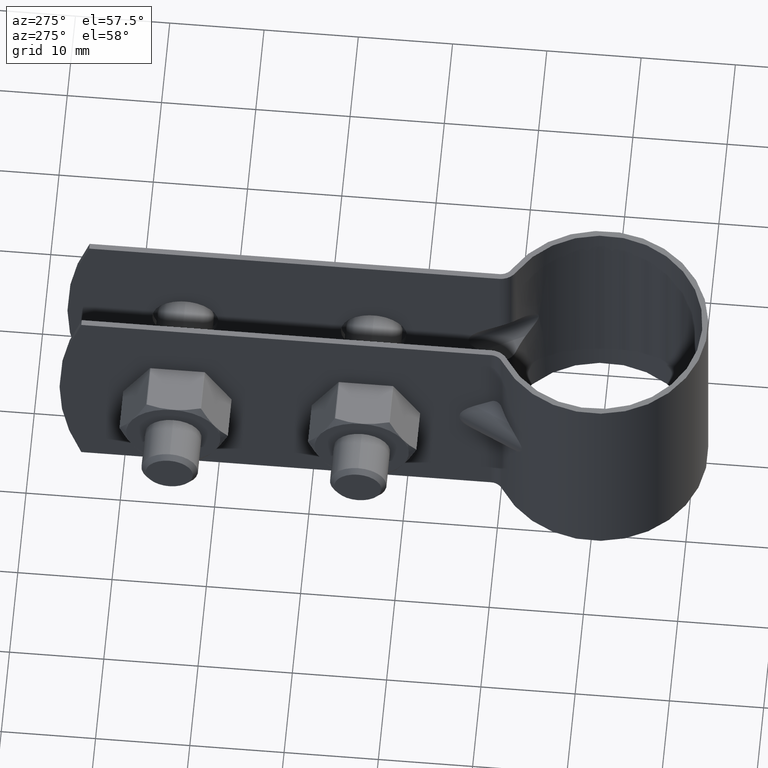
[diagram: clean part render]
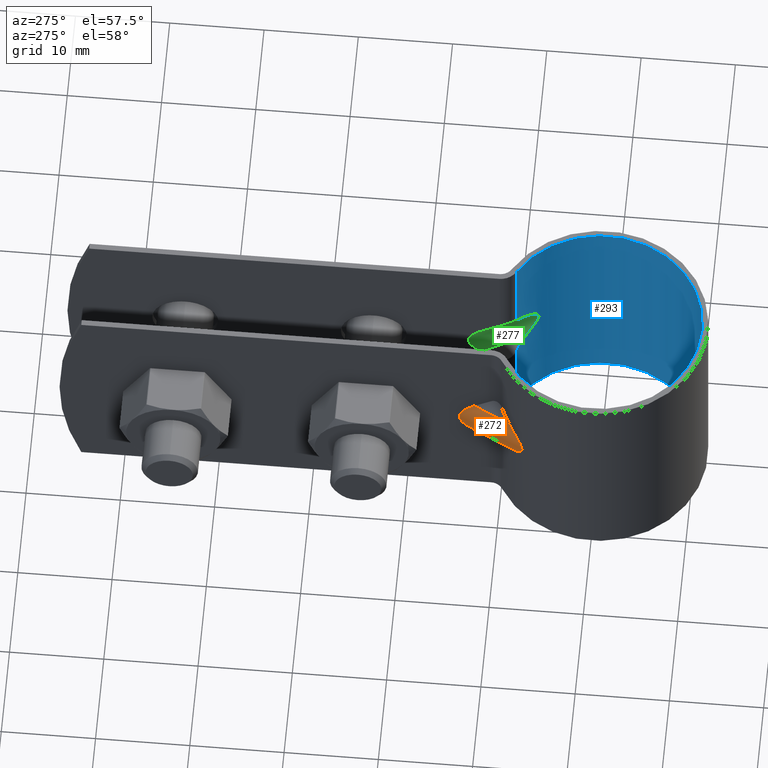
[diagram: same view with three faces highlighted in distinct colors, each labeled with its STEP entity id]
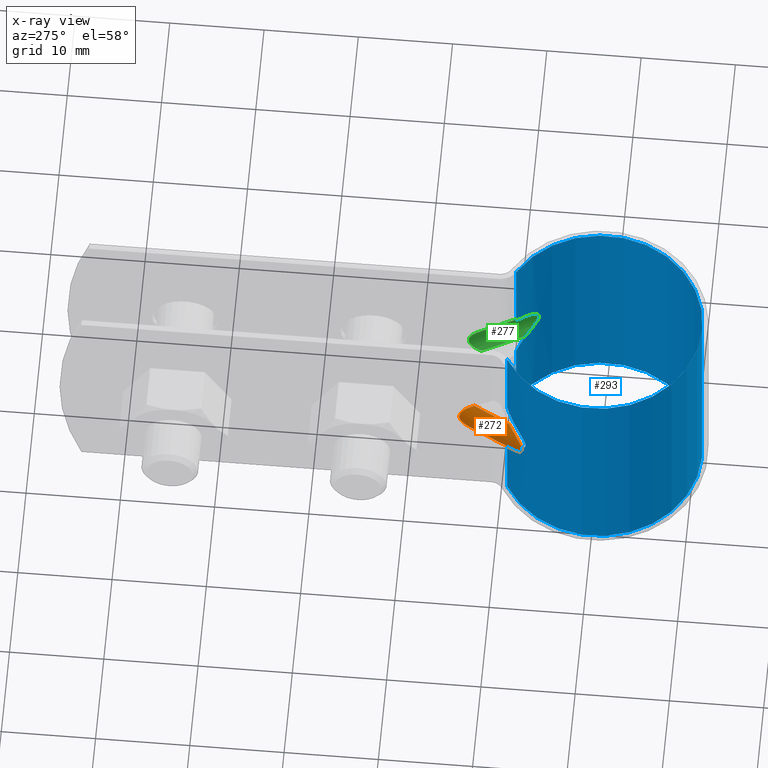
[diagram: x-ray of the same camera — body ghosted, the three highlighted faces saturated]
A machine part, auxiliary view with three faces highlighted in distinct colors.
The next image is the same camera in x-ray (body ghosted, the three faces saturated) — at least one of them is partly hidden behind the body in this view.
Their STEP definitions:

[orange] entity #272 — the highlighted cylindrical surface (partial cylindrical patch) has radius 4 mm, axis along (-0.454, -0.891, -0).
#272 = ADVANCED_FACE( '', ( #380 ), #381, .T. );
#380 = FACE_OUTER_BOUND( '', #612, .T. );
#381 = CYLINDRICAL_SURFACE( '', #613, 4.00000000000000 );
#612 = EDGE_LOOP( '', ( #885, #886, #887, #888 ) );
#613 = AXIS2_PLACEMENT_3D( '', #889, #890, #891 );
#885 = ORIENTED_EDGE( '', *, *, #1647, .T. );
#886 = ORIENTED_EDGE( '', *, *, #1648, .T. );
#887 = ORIENTED_EDGE( '', *, *, #1649, .F. );
#888 = ORIENTED_EDGE( '', *, *, #1639, .T. );
#889 = CARTESIAN_POINT( '', ( -6.67257909010660, 2.56235376942294, -5.98479599211998E-014 ) );
#890 = DIRECTION( '', ( -0.453990499739548, -0.891006524188367, -8.60422844084494E-016 ) );
#891 = DIRECTION( '', ( -0.729869815763728, 0.371887245949431, -0.573576436351049 ) );
#1639 = EDGE_CURVE( '', #1899, #1897, #1900, .T. );
#1647 = EDGE_CURVE( '', #1897, #1912, #1913, .T. );
#1648 = EDGE_CURVE( '', #1912, #1914, #1915, .T. );
#1649 = EDGE_CURVE( '', #1899, #1914, #1916, .T. );
#1897 = VERTEX_POINT( '', #2308 );
#1899 = VERTEX_POINT( '', #2310 );
#1900 = B_SPLINE_CURVE_WITH_KNOTS( '', 3, ( #2311, #2312, #2313, #2314, #2315, #2316, #2317, #2318, #2319, #2320, #2321, #2322, #2323, #2324, #2325, #2326, #2327, #2328, #2329, #2330, #2331, #2332, #2333, #2334 ), .UNSPECIFIED., .F., .F., ( 4, 2, 2, 2, 2, 2, 2, 2, 2, 2, 2, 4 ), ( 9.01388759242296E-018, 0.000814319667050247, 0.00162863933410048, 0.00244295900115072, 0.00285011883467584, 0.00325727866820096, 0.00366443850172608, 0.00407159833525120, 0.00447875816877632, 0.00488591800230145, 0.00570023766935170, 0.00651455733640195 ), .UNSPECIFIED. );
#1912 = VERTEX_POINT( '', #2373 );
#1913 = LINE( '', #2374, #2375 );
#1914 = VERTEX_POINT( '', #2376 );
#1915 = ELLIPSE( '', #2377, 8.81075705834106, 4.00000000000000 );
#1916 = LINE( '', #2378, #2379 );
#2308 = CARTESIAN_POINT( '', ( -7.06421972431640, 9.01106540241381, 2.29430574540414 ) );
#2310 = CARTESIAN_POINT( '', ( -7.06421972431639, 9.01106540241381, -2.29430574540425 ) );
#2311 = CARTESIAN_POINT( '', ( -7.06421972431640, 9.01106540241381, -2.29430574540425 ) );
#2312 = CARTESIAN_POINT( '', ( -7.24857455182145, 8.86654053764197, -2.15342117460646 ) );
#2313 = CARTESIAN_POINT( '', ( -7.42422116055547, 8.71968238392546, -2.00602612896039 ) );
#2314 = CARTESIAN_POINT( '', ( -7.75709271824487, 8.42492927435785, -1.69398396535140 ) );
#2315 = CARTESIAN_POINT( '', ( -7.91447469068832, 8.27681513936333, -1.52968738492926 ) );
#2316 = CARTESIAN_POINT( '', ( -8.20586429096823, 7.98801412861499, -1.17140177940106 ) );
#2317 = CARTESIAN_POINT( '', ( -8.34177096305034, 7.84494315616777, -0.976839271782503 ) );
#2318 = CARTESIAN_POINT( '', ( -8.50427843618292, 7.66721541765637, -0.642951548960518 ) );
#2319 = CARTESIAN_POINT( '', ( -8.55134389353849, 7.61443345170520, -0.523924906721940 ) );
#2320 = CARTESIAN_POINT( '', ( -8.61855257077473, 7.53827770520545, -0.270226439868462 ) );
#2321 = CARTESIAN_POINT( '', ( -8.63829668241162, 7.51547275636857, -0.133195893972342 ) );
#2322 = CARTESIAN_POINT( '', ( -8.63754816475535, 7.51633301727733, 0.141252312308692 ) );
#2323 = CARTESIAN_POINT( '', ( -8.61733682019564, 7.53967775502428, 0.277333798240310 ) );
#2324 = CARTESIAN_POINT( '', ( -8.54811069658341, 7.61807311866089, 0.533442383951286 ) );
#2325 = CARTESIAN_POINT( '', ( -8.50111571649935, 7.67072321994332, 0.650320843498624 ) );
#2326 = CARTESIAN_POINT( '', ( -8.39256627439394, 7.78933851313419, 0.871549761359557 ) );
#2327 = CARTESIAN_POINT( '', ( -8.33069462358880, 7.85563170033272, 0.975773906045482 ) );
#2328 = CARTESIAN_POINT( '', ( -8.19995779842709, 7.99200315482785, 1.17163114108677 ) );
#2329 = CARTESIAN_POINT( '', ( -8.13056697056016, 8.06267872397660, 1.26412699786558 ) );
#2330 = CARTESIAN_POINT( '', ( -7.91313778836715, 8.27806621244543, 1.53104211893414 ) );
#2331 = CARTESIAN_POINT( '', ( -7.75597229987523, 8.42597110763756, 1.69513529121418 ) );
#2332 = CARTESIAN_POINT( '', ( -7.42246333653836, 8.72118876305969, 2.00757206401146 ) );
#2333 = CARTESIAN_POINT( '', ( -7.24645431192027, 8.86820269853652, 2.15504146897296 ) );
#2334 = CARTESIAN_POINT( '', ( -7.06421972431640, 9.01106540241381, 2.29430574540414 ) );
#2373 = CARTESIAN_POINT( '', ( -5.10000000000000, 12.8660636684776, 2.29430574540414 ) );
#2374 = CARTESIAN_POINT( '', ( -9.59205835316151, 4.04990275322066, 2.29430574540413 ) );
#2375 = VECTOR( '', #3039, 1000.00000000000 );
#2376 = CARTESIAN_POINT( '', ( -5.10000000000000, 12.8660636684776, -2.29430574540425 ) );
#2377 = AXIS2_PLACEMENT_3D( '', #3040, #3041, #3042 );
#2378 = CARTESIAN_POINT( '', ( -9.59205835316151, 4.04990275322065, -2.29430574540426 ) );
#2379 = VECTOR( '', #3043, 1000.00000000000 );
#3039 = DIRECTION( '', ( 0.453990499739548, 0.891006524188367, 8.60422844084496E-016 ) );
#3040 = CARTESIAN_POINT( '', ( -5.10000000000000, 5.64871401240387, -5.68675385819128E-014 ) );
#3041 = DIRECTION( '', ( -1.00000000000000, 6.06692130572647E-017, 0.000000000000000 ) );
#3042 = DIRECTION( '', ( 6.06692130572647E-017, 1.00000000000000, 9.65675133376009E-016 ) );
#3043 = DIRECTION( '', ( 0.453990499739548, 0.891006524188367, 8.60422844084496E-016 ) );

[blue] entity #293 — the highlighted cylindrical surface (partial cylindrical patch) has radius 10.85 mm, axis along (0, 0, -1).
#293 = ADVANCED_FACE( '', ( #432 ), #433, .F. );
#432 = FACE_OUTER_BOUND( '', #664, .T. );
#433 = CYLINDRICAL_SURFACE( '', #665, 10.8500000000000 );
#664 = EDGE_LOOP( '', ( #1042, #1043, #1044, #1045, #1046, #1047, #1048, #1049, #1050, #1051, #1052, #1053 ) );
#665 = AXIS2_PLACEMENT_3D( '', #1054, #1055, #1056 );
#1042 = ORIENTED_EDGE( '', *, *, #1658, .F. );
#1043 = ORIENTED_EDGE( '', *, *, #1619, .F. );
#1044 = ORIENTED_EDGE( '', *, *, #1629, .F. );
#1045 = ORIENTED_EDGE( '', *, *, #1699, .T. );
#1046 = ORIENTED_EDGE( '', *, *, #1668, .T. );
#1047 = ORIENTED_EDGE( '', *, *, #1671, .T. );
#1048 = ORIENTED_EDGE( '', *, *, #1663, .T. );
#1049 = ORIENTED_EDGE( '', *, *, #1700, .T. );
#1050 = ORIENTED_EDGE( '', *, *, #1701, .T. );
#1051 = ORIENTED_EDGE( '', *, *, #1697, .F. );
#1052 = ORIENTED_EDGE( '', *, *, #1655, .F. );
#1053 = ORIENTED_EDGE( '', *, *, #1661, .F. );
#1054 = CARTESIAN_POINT( '', ( 0.000000000000000, 0.000000000000000, -12.5000000000000 ) );
#1055 = DIRECTION( '', ( 0.000000000000000, 0.000000000000000, -1.00000000000000 ) );
#1056 = DIRECTION( '', ( -1.00000000000000, 6.06692130572647E-017, 0.000000000000000 ) );
#1619 = EDGE_CURVE( '', #1859, #1855, #1861, .T. );
#1629 = EDGE_CURVE( '', #1879, #1859, #1881, .T. );
#1655 = EDGE_CURVE( '', #1923, #1926, #1927, .F. );
#1658 = EDGE_CURVE( '', #1855, #1931, #1932, .F. );
#1661 = EDGE_CURVE( '', #1931, #1923, #1936, .T. );
#1663 = EDGE_CURVE( '', #1938, #1939, #1940, .F. );
#1668 = EDGE_CURVE( '', #1949, #1946, #1950, .F. );
#1671 = EDGE_CURVE( '', #1946, #1938, #1954, .T. );
#1697 = EDGE_CURVE( '', #1926, #1996, #1997, .T. );
#1699 = EDGE_CURVE( '', #1879, #1949, #1999, .T. );
#1700 = EDGE_CURVE( '', #1939, #2000, #2001, .T. );
#1701 = EDGE_CURVE( '', #2000, #1996, #2002, .T. );
#1855 = VERTEX_POINT( '', #2255 );
#1859 = VERTEX_POINT( '', #2260 );
#1861 = LINE( '', #2262, #2263 );
#1879 = VERTEX_POINT( '', #2286 );
#1881 = CIRCLE( '', #2288, 10.8500000000000 );
#1923 = VERTEX_POINT( '', #2388 );
#1926 = VERTEX_POINT( '', #2392 );
#1927 = ELLIPSE( '', #2393, 18.9163977324889, 10.8500000000000 );
#1931 = VERTEX_POINT( '', #2398 );
#1932 = ELLIPSE( '', #2399, 18.9163977324888, 10.8500000000000 );
#1936 = B_SPLINE_CURVE_WITH_KNOTS( '', 3, ( #2405, #2406, #2407, #2408, #2409, #2410, #2411, #2412, #2413, #2414, #2415, #2416, #2417, #2418, #2419, #2420, #2421, #2422, #2423, #2424, #2425, #2426, #2427, #2428 ), .UNSPECIFIED., .F., .F., ( 4, 2, 2, 2, 2, 2, 2, 2, 2, 2, 2, 4 ), ( 9.01388759242296E-018, 0.000694804889267115, 0.00138960977853422, 0.00208441466780133, 0.00243181711243488, 0.00277921955706843, 0.00312662200170198, 0.00347402444633553, 0.00382142689096908, 0.00416882933560263, 0.00486363422486974, 0.00555843911413684 ), .UNSPECIFIED. );
#1938 = VERTEX_POINT( '', #2430 );
#1939 = VERTEX_POINT( '', #2431 );
#1940 = ELLIPSE( '', #2432, 18.9163977324889, 10.8500000000000 );
#1946 = VERTEX_POINT( '', #2440 );
#1949 = VERTEX_POINT( '', #2444 );
#1950 = ELLIPSE( '', #2445, 18.9163977324888, 10.8500000000000 );
#1954 = B_SPLINE_CURVE_WITH_KNOTS( '', 3, ( #2450, #2451, #2452, #2453, #2454, #2455, #2456, #2457, #2458, #2459, #2460, #2461, #2462, #2463, #2464, #2465, #2466, #2467, #2468, #2469, #2470, #2471, #2472, #2473 ), .UNSPECIFIED., .F., .F., ( 4, 2, 2, 2, 2, 2, 2, 2, 2, 2, 2, 4 ), ( 9.01388759242296E-018, 0.000694804889267115, 0.00138960977853422, 0.00208441466780133, 0.00243181711243488, 0.00277921955706843, 0.00312662200170198, 0.00347402444633553, 0.00382142689096908, 0.00416882933560263, 0.00486363422486974, 0.00555843911413684 ), .UNSPECIFIED. );
#1996 = VERTEX_POINT( '', #2525 );
#1997 = LINE( '', #2526, #2527 );
#1999 = LINE( '', #2529, #2530 );
#2000 = VERTEX_POINT( '', #2531 );
#2001 = LINE( '', #2532, #2533 );
#2002 = CIRCLE( '', #2534, 10.8500000000000 );
#2255 = CARTESIAN_POINT( '', ( 5.48832684824903, 9.35952821496836, -3.02761300976426 ) );
#2260 = CARTESIAN_POINT( '', ( 5.48832684824902, 9.35952821496837, -12.5000000000000 ) );
#2262 = CARTESIAN_POINT( '', ( 5.48832684824902, 9.35952821496837, -12.5000000000000 ) );
#2263 = VECTOR( '', #2989, 1000.00000000000 );
#2286 = CARTESIAN_POINT( '', ( -5.48832684824902, 9.35952821496836, -12.5000000000000 ) );
#2288 = AXIS2_PLACEMENT_3D( '', #3007, #3008, #3009 );
#2388 = CARTESIAN_POINT( '', ( 6.79334839458084, 8.46007787138192, 1.95015988359351 ) );
#2392 = CARTESIAN_POINT( '', ( 5.48832684824902, 9.35952821496837, 3.02761300976419 ) );
#2393 = AXIS2_PLACEMENT_3D( '', #3053, #3054, #3055 );
#2398 = CARTESIAN_POINT( '', ( 6.79334839458081, 8.46007787138194, -1.95015988359363 ) );
#2399 = AXIS2_PLACEMENT_3D( '', #3060, #3061, #3062 );
#2405 = CARTESIAN_POINT( '', ( 6.79334839458083, 8.46007787138192, -1.95015988359363 ) );
#2406 = CARTESIAN_POINT( '', ( 6.95023884038342, 8.33409658913824, -1.83220042014588 ) );
#2407 = CARTESIAN_POINT( '', ( 7.10002408916225, 8.20661889104677, -1.70850550312948 ) );
#2408 = CARTESIAN_POINT( '', ( 7.38429512859306, 7.95179986816864, -1.44570034160922 ) );
#2409 = CARTESIAN_POINT( '', ( 7.51891880420967, 7.82427269848669, -1.30689752183531 ) );
#2410 = CARTESIAN_POINT( '', ( 7.76836616845354, 7.57666617434134, -1.00270553528023 ) );
#2411 = CARTESIAN_POINT( '', ( 7.88481408376071, 7.45458445721132, -0.836726470536817 ) );
#2412 = CARTESIAN_POINT( '', ( 8.02355984047711, 7.30408400332136, -0.551142752742063 ) );
#2413 = CARTESIAN_POINT( '', ( 8.06365598620096, 7.25959977218692, -0.449167586794687 ) );
#2414 = CARTESIAN_POINT( '', ( 8.12075354618760, 7.19567221030896, -0.232179066311111 ) );
#2415 = CARTESIAN_POINT( '', ( 8.13746755171363, 7.17663722897946, -0.115124882815023 ) );
#2416 = CARTESIAN_POINT( '', ( 8.13711364637387, 7.17703849631324, 0.118992559766321 ) );
#2417 = CARTESIAN_POINT( '', ( 8.12023659398230, 7.19626098279811, 0.235445546524866 ) );
#2418 = CARTESIAN_POINT( '', ( 8.06193281695129, 7.26151869306660, 0.454362944681228 ) );
#2419 = CARTESIAN_POINT( '', ( 8.02193460226460, 7.30586821324822, 0.554923959667004 ) );
#2420 = CARTESIAN_POINT( '', ( 7.92952050623727, 7.40606843429923, 0.744254988697547 ) );
#2421 = CARTESIAN_POINT( '', ( 7.87662862109264, 7.46242129514584, 0.833484119425869 ) );
#2422 = CARTESIAN_POINT( '', ( 7.76477688609403, 7.57873669750056, 1.00074809285221 ) );
#2423 = CARTESIAN_POINT( '', ( 7.70539249747162, 7.63917926119908, 1.07951780512889 ) );
#2424 = CARTESIAN_POINT( '', ( 7.51936372475159, 7.82382275324501, 1.30631850532377 ) );
#2425 = CARTESIAN_POINT( '', ( 7.38495698343098, 7.95119347071163, 1.44505926381672 ) );
#2426 = CARTESIAN_POINT( '', ( 7.10018618479132, 8.20648666587057, 1.70838476425258 ) );
#2427 = CARTESIAN_POINT( '', ( 6.94988729835050, 8.33437887347904, 1.83246473012099 ) );
#2428 = CARTESIAN_POINT( '', ( 6.79334839458144, 8.46007787138146, 1.95015988359466 ) );
#2430 = CARTESIAN_POINT( '', ( -6.79334839458084, 8.46007787138192, 1.95015988359351 ) );
#2431 = CARTESIAN_POINT( '', ( -5.48832684824902, 9.35952821496836, 3.02761300976419 ) );
#2432 = AXIS2_PLACEMENT_3D( '', #3068, #3069, #3070 );
#2440 = CARTESIAN_POINT( '', ( -6.79334839458081, 8.46007787138194, -1.95015988359363 ) );
#2444 = CARTESIAN_POINT( '', ( -5.48832684824903, 9.35952821496836, -3.02761300976426 ) );
#2445 = AXIS2_PLACEMENT_3D( '', #3077, #3078, #3079 );
#2450 = CARTESIAN_POINT( '', ( -6.79334839458083, 8.46007787138192, -1.95015988359363 ) );
#2451 = CARTESIAN_POINT( '', ( -6.95023884038342, 8.33409658913824, -1.83220042014588 ) );
#2452 = CARTESIAN_POINT( '', ( -7.10002408916225, 8.20661889104677, -1.70850550312948 ) );
#2453 = CARTESIAN_POINT( '', ( -7.38429512859306, 7.95179986816864, -1.44570034160922 ) );
#2454 = CARTESIAN_POINT( '', ( -7.51891880420967, 7.82427269848669, -1.30689752183531 ) );
#2455 = CARTESIAN_POINT( '', ( -7.76836616845354, 7.57666617434134, -1.00270553528023 ) );
#2456 = CARTESIAN_POINT( '', ( -7.88481408376071, 7.45458445721132, -0.836726470536817 ) );
#2457 = CARTESIAN_POINT( '', ( -8.02355984047711, 7.30408400332136, -0.551142752742063 ) );
#2458 = CARTESIAN_POINT( '', ( -8.06365598620096, 7.25959977218692, -0.449167586794687 ) );
#2459 = CARTESIAN_POINT( '', ( -8.12075354618760, 7.19567221030896, -0.232179066311111 ) );
#2460 = CARTESIAN_POINT( '', ( -8.13746755171363, 7.17663722897946, -0.115124882815023 ) );
#2461 = CARTESIAN_POINT( '', ( -8.13711364637387, 7.17703849631324, 0.118992559766321 ) );
#2462 = CARTESIAN_POINT( '', ( -8.12023659398230, 7.19626098279811, 0.235445546524866 ) );
#2463 = CARTESIAN_POINT( '', ( -8.06193281695129, 7.26151869306660, 0.454362944681228 ) );
#2464 = CARTESIAN_POINT( '', ( -8.02193460226460, 7.30586821324822, 0.554923959667004 ) );
#2465 = CARTESIAN_POINT( '', ( -7.92952050623727, 7.40606843429923, 0.744254988697547 ) );
#2466 = CARTESIAN_POINT( '', ( -7.87662862109264, 7.46242129514584, 0.833484119425869 ) );
#2467 = CARTESIAN_POINT( '', ( -7.76477688609403, 7.57873669750056, 1.00074809285221 ) );
#2468 = CARTESIAN_POINT( '', ( -7.70539249747162, 7.63917926119908, 1.07951780512889 ) );
#2469 = CARTESIAN_POINT( '', ( -7.51936372475159, 7.82382275324501, 1.30631850532377 ) );
#2470 = CARTESIAN_POINT( '', ( -7.38495698343098, 7.95119347071163, 1.44505926381672 ) );
#2471 = CARTESIAN_POINT( '', ( -7.10018618479132, 8.20648666587057, 1.70838476425258 ) );
#2472 = CARTESIAN_POINT( '', ( -6.94988729835050, 8.33437887347904, 1.83246473012099 ) );
#2473 = CARTESIAN_POINT( '', ( -6.79334839458144, 8.46007787138146, 1.95015988359466 ) );
#2525 = CARTESIAN_POINT( '', ( 5.48832684824902, 9.35952821496837, 12.5000000000000 ) );
#2526 = CARTESIAN_POINT( '', ( 5.48832684824902, 9.35952821496837, -12.5000000000000 ) );
#2527 = VECTOR( '', #3139, 1000.00000000000 );
#2529 = CARTESIAN_POINT( '', ( -5.48832684824902, 9.35952821496836, -12.5000000000000 ) );
#2530 = VECTOR( '', #3143, 1000.00000000000 );
#2531 = CARTESIAN_POINT( '', ( -5.48832684824902, 9.35952821496836, 12.5000000000000 ) );
#2532 = CARTESIAN_POINT( '', ( -5.48832684824902, 9.35952821496836, -12.5000000000000 ) );
#2533 = VECTOR( '', #3144, 1000.00000000000 );
#2534 = AXIS2_PLACEMENT_3D( '', #3145, #3146, #3147 );
#2989 = DIRECTION( '', ( 0.000000000000000, 0.000000000000000, 1.00000000000000 ) );
#3007 = CARTESIAN_POINT( '', ( 0.000000000000000, 0.000000000000000, -12.5000000000000 ) );
#3008 = DIRECTION( '', ( 0.000000000000000, 0.000000000000000, 1.00000000000000 ) );
#3009 = DIRECTION( '', ( 1.00000000000000, -6.06692130572647E-017, 0.000000000000000 ) );
#3053 = CARTESIAN_POINT( '', ( 0.000000000000000, 0.000000000000000, 16.0798459858261 ) );
#3054 = DIRECTION( '', ( -0.729869815763729, -0.371887245949430, -0.573576436351048 ) );
#3055 = DIRECTION( '', ( -0.511060346909498, -0.260398252977841, 0.819152044288990 ) );
#3060 = CARTESIAN_POINT( '', ( 0.000000000000000, 0.000000000000000, -16.0798459858262 ) );
#3061 = DIRECTION( '', ( -0.729869815763728, -0.371887245949431, 0.573576436351049 ) );
#3062 = DIRECTION( '', ( 0.511060346909498, 0.260398252977842, 0.819152044288990 ) );
#3068 = CARTESIAN_POINT( '', ( 0.000000000000000, 0.000000000000000, 16.0798459858261 ) );
#3069 = DIRECTION( '', ( -0.729869815763729, 0.371887245949430, 0.573576436351048 ) );
#3070 = DIRECTION( '', ( 0.511060346909498, -0.260398252977841, 0.819152044288990 ) );
#3077 = CARTESIAN_POINT( '', ( 0.000000000000000, 0.000000000000000, -16.0798459858262 ) );
#3078 = DIRECTION( '', ( -0.729869815763728, 0.371887245949431, -0.573576436351049 ) );
#3079 = DIRECTION( '', ( -0.511060346909498, 0.260398252977842, 0.819152044288990 ) );
#3139 = DIRECTION( '', ( 0.000000000000000, 0.000000000000000, 1.00000000000000 ) );
#3143 = DIRECTION( '', ( 0.000000000000000, 0.000000000000000, 1.00000000000000 ) );
#3144 = DIRECTION( '', ( 0.000000000000000, 0.000000000000000, 1.00000000000000 ) );
#3145 = CARTESIAN_POINT( '', ( 0.000000000000000, 0.000000000000000, 12.5000000000000 ) );
#3146 = DIRECTION( '', ( 0.000000000000000, 0.000000000000000, 1.00000000000000 ) );
#3147 = DIRECTION( '', ( 1.00000000000000, -6.06692130572647E-017, 0.000000000000000 ) );

[green] entity #277 — the highlighted cylindrical surface (edge-blend (fillet) strip) has radius 3.4 mm, axis along (0.454, -0.891, -0).
#277 = ADVANCED_FACE( '', ( #390 ), #391, .F. );
#390 = FACE_OUTER_BOUND( '', #622, .T. );
#391 = CYLINDRICAL_SURFACE( '', #623, 3.40000000000000 );
#622 = EDGE_LOOP( '', ( #920, #921, #922, #923 ) );
#623 = AXIS2_PLACEMENT_3D( '', #924, #925, #926 );
#920 = ORIENTED_EDGE( '', *, *, #1659, .F. );
#921 = ORIENTED_EDGE( '', *, *, #1661, .T. );
#922 = ORIENTED_EDGE( '', *, *, #1654, .T. );
#923 = ORIENTED_EDGE( '', *, *, #1662, .T. );
#924 = CARTESIAN_POINT( '', ( 6.67257909010660, 2.56235376942294, -5.98479599211998E-014 ) );
#925 = DIRECTION( '', ( 0.453990499739548, -0.891006524188367, -8.45152475493196E-016 ) );
#926 = DIRECTION( '', ( 0.729869815763728, 0.371887245949431, -0.573576436351049 ) );
#1654 = EDGE_CURVE( '', #1923, #1924, #1925, .T. );
#1659 = EDGE_CURVE( '', #1931, #1933, #1934, .T. );
#1661 = EDGE_CURVE( '', #1931, #1923, #1936, .T. );
#1662 = EDGE_CURVE( '', #1924, #1933, #1937, .F. );
#1923 = VERTEX_POINT( '', #2388 );
#1924 = VERTEX_POINT( '', #2389 );
#1925 = LINE( '', #2390, #2391 );
#1931 = VERTEX_POINT( '', #2398 );
#1933 = VERTEX_POINT( '', #2400 );
#1934 = LINE( '', #2401, #2402 );
#1936 = B_SPLINE_CURVE_WITH_KNOTS( '', 3, ( #2405, #2406, #2407, #2408, #2409, #2410, #2411, #2412, #2413, #2414, #2415, #2416, #2417, #2418, #2419, #2420, #2421, #2422, #2423, #2424, #2425, #2426, #2427, #2428 ), .UNSPECIFIED., .F., .F., ( 4, 2, 2, 2, 2, 2, 2, 2, 2, 2, 2, 4 ), ( 9.01388759242296E-018, 0.000694804889267115, 0.00138960977853422, 0.00208441466780133, 0.00243181711243488, 0.00277921955706843, 0.00312662200170198, 0.00347402444633553, 0.00382142689096908, 0.00416882933560263, 0.00486363422486974, 0.00555843911413684 ), .UNSPECIFIED. );
#1937 = ELLIPSE( '', #2429, 7.48914349958990, 3.40000000000000 );
#2388 = CARTESIAN_POINT( '', ( 6.79334839458084, 8.46007787138192, 1.95015988359351 ) );
#2389 = CARTESIAN_POINT( '', ( 4.50000000000000, 12.9610275233696, 1.95015988359351 ) );
#2390 = CARTESIAN_POINT( '', ( 9.15413646370328, 3.82677040565100, 1.95015988359351 ) );
#2391 = VECTOR( '', #3052, 1000.00000000000 );
#2398 = CARTESIAN_POINT( '', ( 6.79334839458081, 8.46007787138194, -1.95015988359363 ) );
#2400 = CARTESIAN_POINT( '', ( 4.50000000000000, 12.9610275233696, -1.95015988359362 ) );
#2401 = CARTESIAN_POINT( '', ( 9.15413646370327, 3.82677040565099, -1.95015988359363 ) );
#2402 = VECTOR( '', #3063, 1000.00000000000 );
#2405 = CARTESIAN_POINT( '', ( 6.79334839458083, 8.46007787138192, -1.95015988359363 ) );
#2406 = CARTESIAN_POINT( '', ( 6.95023884038342, 8.33409658913824, -1.83220042014588 ) );
#2407 = CARTESIAN_POINT( '', ( 7.10002408916225, 8.20661889104677, -1.70850550312948 ) );
#2408 = CARTESIAN_POINT( '', ( 7.38429512859306, 7.95179986816864, -1.44570034160922 ) );
#2409 = CARTESIAN_POINT( '', ( 7.51891880420967, 7.82427269848669, -1.30689752183531 ) );
#2410 = CARTESIAN_POINT( '', ( 7.76836616845354, 7.57666617434134, -1.00270553528023 ) );
#2411 = CARTESIAN_POINT( '', ( 7.88481408376071, 7.45458445721132, -0.836726470536817 ) );
#2412 = CARTESIAN_POINT( '', ( 8.02355984047711, 7.30408400332136, -0.551142752742063 ) );
#2413 = CARTESIAN_POINT( '', ( 8.06365598620096, 7.25959977218692, -0.449167586794687 ) );
#2414 = CARTESIAN_POINT( '', ( 8.12075354618760, 7.19567221030896, -0.232179066311111 ) );
#2415 = CARTESIAN_POINT( '', ( 8.13746755171363, 7.17663722897946, -0.115124882815023 ) );
#2416 = CARTESIAN_POINT( '', ( 8.13711364637387, 7.17703849631324, 0.118992559766321 ) );
#2417 = CARTESIAN_POINT( '', ( 8.12023659398230, 7.19626098279811, 0.235445546524866 ) );
#2418 = CARTESIAN_POINT( '', ( 8.06193281695129, 7.26151869306660, 0.454362944681228 ) );
#2419 = CARTESIAN_POINT( '', ( 8.02193460226460, 7.30586821324822, 0.554923959667004 ) );
#2420 = CARTESIAN_POINT( '', ( 7.92952050623727, 7.40606843429923, 0.744254988697547 ) );
#2421 = CARTESIAN_POINT( '', ( 7.87662862109264, 7.46242129514584, 0.833484119425869 ) );
#2422 = CARTESIAN_POINT( '', ( 7.76477688609403, 7.57873669750056, 1.00074809285221 ) );
#2423 = CARTESIAN_POINT( '', ( 7.70539249747162, 7.63917926119908, 1.07951780512889 ) );
#2424 = CARTESIAN_POINT( '', ( 7.51936372475159, 7.82382275324501, 1.30631850532377 ) );
#2425 = CARTESIAN_POINT( '', ( 7.38495698343098, 7.95119347071163, 1.44505926381672 ) );
#2426 = CARTESIAN_POINT( '', ( 7.10018618479132, 8.20648666587057, 1.70838476425258 ) );
#2427 = CARTESIAN_POINT( '', ( 6.94988729835050, 8.33437887347904, 1.83246473012099 ) );
#2428 = CARTESIAN_POINT( '', ( 6.79334839458144, 8.46007787138146, 1.95015988359466 ) );
#2429 = AXIS2_PLACEMENT_3D( '', #3065, #3066, #3067 );
#3052 = DIRECTION( '', ( -0.453990499739548, 0.891006524188367, 8.60422844084496E-016 ) );
#3063 = DIRECTION( '', ( -0.453990499739548, 0.891006524188367, 8.60422844084496E-016 ) );
#3065 = CARTESIAN_POINT( '', ( 4.50000000000000, 6.82628031570696, -5.57303920849115E-014 ) );
#3066 = DIRECTION( '', ( 1.00000000000000, 6.06692130572647E-017, 0.000000000000000 ) );
#3067 = DIRECTION( '', ( -6.06692130572647E-017, 1.00000000000000, 9.65675133376009E-016 ) );